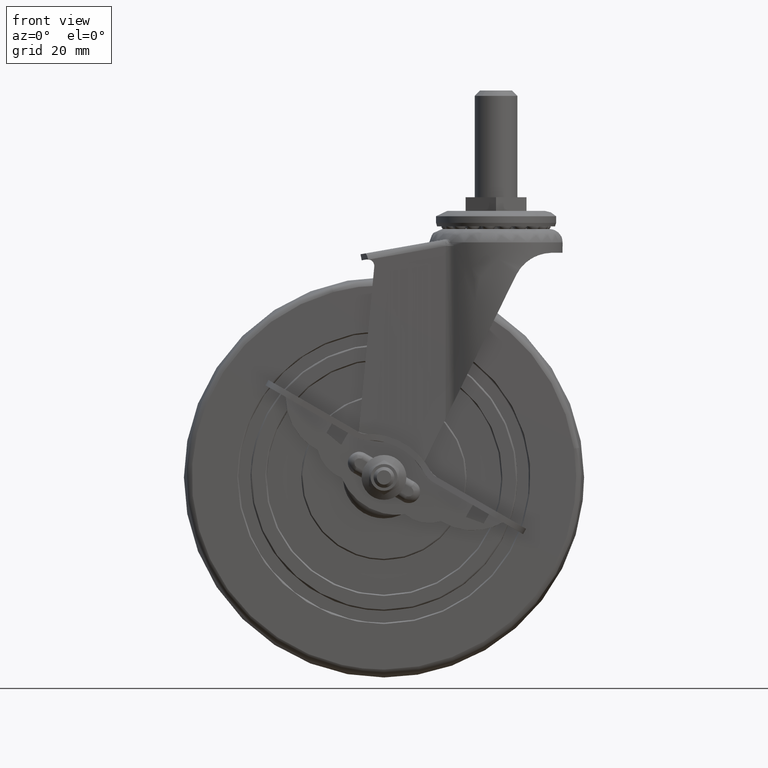
[diagram: clean part render]
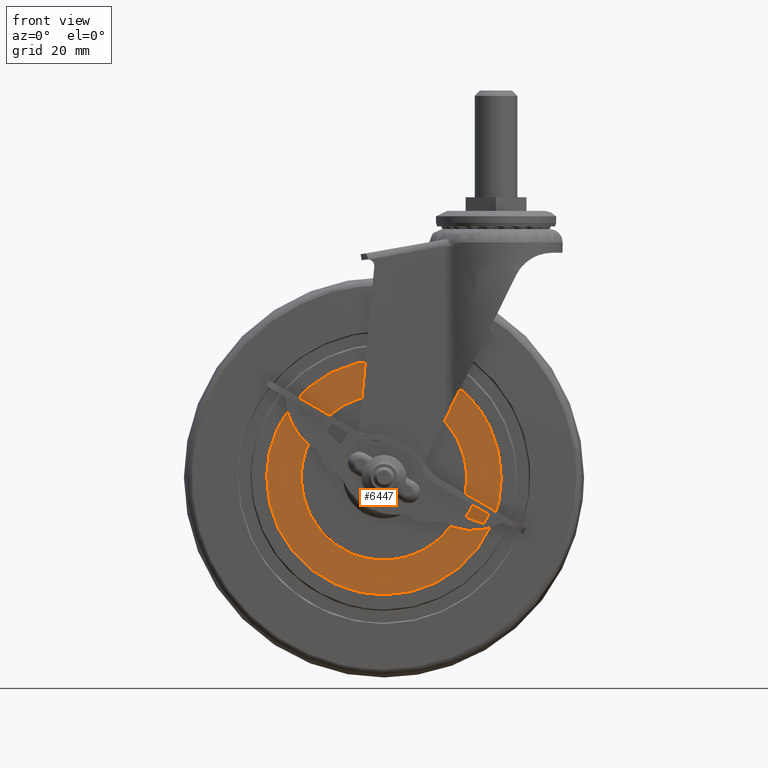
[diagram: same view with one face highlighted and labeled with its STEP entity id]
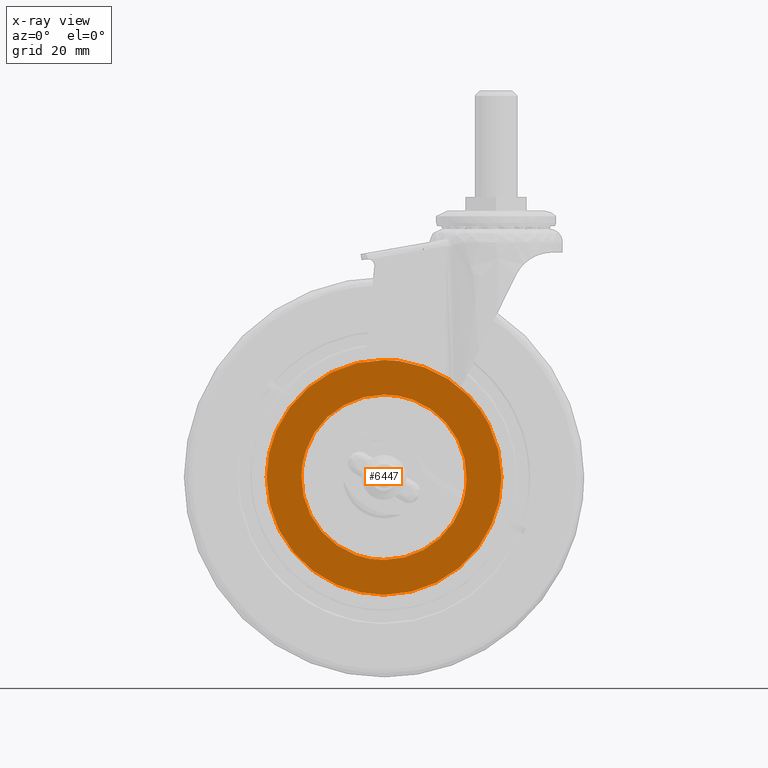
[diagram: x-ray of the same camera — body ghosted, the highlighted face saturated]
A machine part, front view. The second image highlights one B-rep face of the part: STEP entity #6447.
The next image is the same camera in x-ray: the body ghosted, the highlighted face saturated — about 0% of this face is hidden behind the body in this view.
In plain terms, the highlighted face is a freeform B-spline surface patch.
Its self-contained STEP definition (entity closure, byte-faithful):
#1001=CARTESIAN_POINT('',(5.507928156522100,-12.500000000000050,43.653897096731313));
#1002=VERTEX_POINT('',#1001);
#1003=CARTESIAN_POINT('',(0.0,-12.500000000000000,44.0));
#1004=VERTEX_POINT('',#1003);
#1005=CARTESIAN_POINT('',(5.507928156522100,-12.500000000000050,43.653897096731313));
#1006=CARTESIAN_POINT('',(3.681605493929291,-12.500000000000050,43.884373432649419));
#1007=CARTESIAN_POINT('',(1.840806214977043,-12.500000000000000,44.000031619623378));
#1008=CARTESIAN_POINT('',(0.0,-12.500000000000000,44.0));
#1009=B_SPLINE_CURVE_WITH_KNOTS('',3,(#1005,#1006,#1007,#1008),.UNSPECIFIED.,.F.,.U.,(4,4),(7.898118E-010,5.522429648992174),.UNSPECIFIED.);
#1010=EDGE_CURVE('',#1002,#1004,#1009,.T.);
#1098=CARTESIAN_POINT('',(31.916472717883430,-12.500000000000050,30.287601836070039));
#1099=VERTEX_POINT('',#1098);
#1105=CARTESIAN_POINT('',(43.999999999999922,-12.500000000000000,0.000002536736108));
#1106=VERTEX_POINT('',#1105);
#1107=CARTESIAN_POINT('',(43.999999999999922,-12.500000000000000,0.000002536736108));
#1108=CARTESIAN_POINT('',(44.000173685693163,-12.499999999999950,2.435834442095090));
#1109=CARTESIAN_POINT('',(43.594479688003823,-12.500000000000050,7.307451354724194));
#1110=CARTESIAN_POINT('',(41.980329791105710,-12.500000000000050,13.652380534259169));
#1111=CARTESIAN_POINT('',(39.504811051110948,-12.500000000000080,19.700297988192830));
#1112=CARTESIAN_POINT('',(36.338941588718200,-12.499999999999851,25.129852487764950));
#1113=CARTESIAN_POINT('',(33.413602350257086,-12.500000000000460,28.710091978004680));
#1114=CARTESIAN_POINT('',(31.916472717883430,-12.500000000000050,30.287601836070039));
#1115=B_SPLINE_CURVE_WITH_KNOTS('',3,(#1107,#1108,#1109,#1110,#1111,#1112,#1113,#1114),.UNSPECIFIED.,.F.,.U.,(4,1,1,1,1,4),(0.000000030561509,7.307484340641956,14.614987730618230,19.573614730043008,26.881108953884279,33.405648651164690),.UNSPECIFIED.);
#1116=EDGE_CURVE('',#1106,#1099,#1115,.T.);
#1118=CARTESIAN_POINT('',(0.0,-12.500000000000000,-44.0));
#1119=VERTEX_POINT('',#1118);
#1120=CARTESIAN_POINT('',(0.0,-12.500000000000000,-44.0));
#1121=CARTESIAN_POINT('',(3.149816687455145,-12.500000000000041,-44.000556580729352));
#1122=CARTESIAN_POINT('',(8.369204606220297,-12.499999999999879,-43.437011515448141));
#1123=CARTESIAN_POINT('',(14.775379059175769,-12.500000000000130,-41.557751543534323));
#1124=CARTESIAN_POINT('',(19.744244777730351,-12.499999999999879,-39.427780706784262));
#1125=CARTESIAN_POINT('',(24.052295983331650,-12.499999999999901,-36.969799818149021));
#1126=CARTESIAN_POINT('',(28.613135964990409,-12.500000000000210,-33.587313415377963));
#1127=CARTESIAN_POINT('',(32.706313467943268,-12.499999999999959,-29.642123848400221));
#1128=CARTESIAN_POINT('',(36.493900344153502,-12.500000000000069,-24.819373291929729));
#1129=CARTESIAN_POINT('',(39.096884972739609,-12.499999999999970,-20.384407546800620));
#1130=CARTESIAN_POINT('',(41.154906041577739,-12.500000000000011,-15.779719634873000));
#1131=CARTESIAN_POINT('',(42.540751059392399,-12.500000000000060,-11.584697558373099));
#1132=CARTESIAN_POINT('',(43.697752066040707,-12.499999999999750,-6.119488230498729));
#1133=CARTESIAN_POINT('',(44.000158097064769,-12.500000000000449,-2.339823289393731));
#1134=CARTESIAN_POINT('',(43.999999999999922,-12.500000000000000,0.000002536736108));
#1135=B_SPLINE_CURVE_WITH_KNOTS('',3,(#1120,#1121,#1122,#1123,#1124,#1125,#1126,#1127,#1128,#1129,#1130,#1131,#1132,#1133,#1134),.UNSPECIFIED.,.F.,.U.,(4,1,1,1,1,1,1,1,1,1,1,1,4),(0.000000124394205,9.449325278859796,15.658895257694899,19.978607046891788,25.648235195537559,30.507903626841468,36.987375284897318,42.656982673524382,48.866556400957251,52.376324872986707,57.775951514229767,62.095696382440643,69.115148230160642),.UNSPECIFIED.);
#1136=EDGE_CURVE('',#1119,#1106,#1135,.T.);
#1138=CARTESIAN_POINT('',(-43.999999999999929,-12.500000000000000,-0.000002536735341));
#1139=VERTEX_POINT('',#1138);
#1140=CARTESIAN_POINT('',(-43.999999999999929,-12.500000000000000,-0.000002536735341));
#1141=CARTESIAN_POINT('',(-44.000077886952511,-12.500000000000000,-1.979843347429738));
#1142=CARTESIAN_POINT('',(-43.738388225332521,-12.500000000000030,-5.849539779258989));
#1143=CARTESIAN_POINT('',(-42.684382072963643,-12.500000000000000,-11.064738453688120));
#1144=CARTESIAN_POINT('',(-41.020078964708922,-12.499999999999980,-16.208330109738291));
#1145=CARTESIAN_POINT('',(-38.372903292954462,-12.500000000000060,-21.942048390581100));
#1146=CARTESIAN_POINT('',(-34.401584233655242,-12.499999999999931,-27.768610776132370));
#1147=CARTESIAN_POINT('',(-29.329047756944469,-12.499999999999959,-33.031205413666747));
#1148=CARTESIAN_POINT('',(-23.509443706493691,-12.500000000000110,-37.459319402143848));
#1149=CARTESIAN_POINT('',(-17.722735596246959,-12.499999999999970,-40.439137799833190));
#1150=CARTESIAN_POINT('',(-12.020987813814299,-12.500000000000110,-42.419970639323211));
#1151=CARTESIAN_POINT('',(-6.569469428249429,-12.499999999999790,-43.661812468035158));
#1152=CARTESIAN_POINT('',(-2.339819189141733,-12.500000000000419,-44.000155825818133));
#1153=CARTESIAN_POINT('',(0.0,-12.500000000000000,-44.0));
#1154=B_SPLINE_CURVE_WITH_KNOTS('',3,(#1140,#1141,#1142,#1143,#1144,#1145,#1146,#1147,#1148,#1149,#1150,#1151,#1152,#1153),.UNSPECIFIED.,.F.,.U.,(4,1,1,1,1,1,1,1,1,1,1,4),(0.000000124608107,5.939521795007806,11.609158345547399,15.928879533867240,22.138456083013811,30.507902364040451,36.987373752991552,44.006866822950272,52.376322705906723,56.426059511879537,62.095693813225431,69.115145370663740),.UNSPECIFIED.);
#1155=EDGE_CURVE('',#1139,#1119,#1154,.T.);
#1157=CARTESIAN_POINT('',(0.0,-12.500000000000000,44.0));
#1158=CARTESIAN_POINT('',(-3.329826366400188,-12.499999999999989,44.000723509312103));
#1159=CARTESIAN_POINT('',(-8.099161931539387,-12.500000000000060,43.455909123552239));
#1160=CARTESIAN_POINT('',(-13.993973408019530,-12.499999999999950,41.785307838454763));
#1161=CARTESIAN_POINT('',(-18.863330930031520,-12.500000000000060,39.890037992338719));
#1162=CARTESIAN_POINT('',(-23.459497076358819,-12.499999999999959,37.378644536272517));
#1163=CARTESIAN_POINT('',(-28.184848062521059,-12.500000000000041,33.918688955950948));
#1164=CARTESIAN_POINT('',(-31.555130366048889,-12.499999999999901,30.787868921473638));
#1165=CARTESIAN_POINT('',(-34.861194169729544,-12.500000000000030,26.978906176345362));
#1166=CARTESIAN_POINT('',(-37.549643988440472,-12.499999999999989,23.136671861655739));
#1167=CARTESIAN_POINT('',(-39.843915081352847,-12.500000000000011,18.844258634462928));
#1168=CARTESIAN_POINT('',(-41.589110784809861,-12.500000000000060,14.594071092770660));
#1169=CARTESIAN_POINT('',(-43.409406684455227,-12.499999999999790,8.459088147694139));
#1170=CARTESIAN_POINT('',(-44.000781802305248,-12.500000000000220,3.419824860943434));
#1171=CARTESIAN_POINT('',(-43.999999999999929,-12.500000000000000,-0.000002536735341));
#1172=B_SPLINE_CURVE_WITH_KNOTS('',3,(#1157,#1158,#1159,#1160,#1161,#1162,#1163,#1164,#1165,#1166,#1167,#1168,#1169,#1170,#1171),.UNSPECIFIED.,.F.,.U.,(4,1,1,1,1,1,1,1,1,1,1,1,4),(0.000000124393239,9.989261482856868,14.308993286259390,18.358714855197402,25.648235195540838,29.967962659630778,35.907400254783447,39.417200126009703,45.086823888082932,49.946490136680332,53.996218473874201,58.855905931271757,69.115148230160202),.UNSPECIFIED.);
#1173=EDGE_CURVE('',#1004,#1139,#1172,.T.);
#1192=CARTESIAN_POINT('',(31.916472717883430,-12.500000000000050,30.287601836070039));
#1193=CARTESIAN_POINT('',(30.780107452350329,-12.500000000000041,31.485085034746412));
#1194=CARTESIAN_POINT('',(27.741920171821761,-12.500000000000099,34.345831419710578));
#1195=CARTESIAN_POINT('',(21.934968272106140,-12.500000000000069,38.433102141531940));
#1196=CARTESIAN_POINT('',(14.245632212220730,-12.499999999999920,41.943962344575759));
#1197=CARTESIAN_POINT('',(8.471772541711072,-12.500000000000190,43.280368939406110));
#1198=CARTESIAN_POINT('',(5.507928156522100,-12.500000000000050,43.653897096731313));
#1199=B_SPLINE_CURVE_WITH_KNOTS('',3,(#1192,#1193,#1194,#1195,#1196,#1197,#1198),.UNSPECIFIED.,.F.,.U.,(4,1,1,1,4),(0.000000023869106,4.952557027038804,12.499353269002221,21.225273578709999,30.187057280847750),.UNSPECIFIED.);
#1200=EDGE_CURVE('',#1099,#1002,#1199,.T.);
#3191=CARTESIAN_POINT('',(-30.990209867778141,-12.500000004076250,0.779032958908664));
#3192=VERTEX_POINT('',#3191);
#3193=CARTESIAN_POINT('',(0.0,-12.500000000000000,-31.0));
#3194=VERTEX_POINT('',#3193);
#3195=CARTESIAN_POINT('',(-30.990209867778141,-12.500000004076250,0.779032958908664));
#3196=CARTESIAN_POINT('',(-31.040648445308829,-12.500000003646999,-1.217320918594933));
#3197=CARTESIAN_POINT('',(-30.767462899137200,-12.500000002860080,-5.026020605245900));
#3198=CARTESIAN_POINT('',(-29.525933151761610,-12.500000001955749,-9.781115422736075));
#3199=CARTESIAN_POINT('',(-27.785398268608532,-12.500000001219769,-13.947940447207859));
#3200=CARTESIAN_POINT('',(-25.836918581412750,-12.500000000675550,-17.299606434831521));
#3201=CARTESIAN_POINT('',(-23.263538536910339,-12.500000000193770,-20.611060178181329));
#3202=CARTESIAN_POINT('',(-20.067916533217169,-12.499999999790621,-23.807611028352181));
#3203=CARTESIAN_POINT('',(-16.338276597090900,-12.499999999543340,-26.489422589133660));
#3204=CARTESIAN_POINT('',(-12.139562006821629,-12.499999999452511,-28.625608971942910));
#3205=CARTESIAN_POINT('',(-6.956881841531130,-12.499999999516190,-30.439763949033999));
#3206=CARTESIAN_POINT('',(-2.705680894311840,-12.499999999765130,-31.000797249464881));
#3207=CARTESIAN_POINT('',(0.0,-12.500000000000000,-31.0));
#3208=B_SPLINE_CURVE_WITH_KNOTS('',3,(#3195,#3196,#3197,#3198,#3199,#3200,#3201,#3202,#3203,#3204,#3205,#3206,#3207),.UNSPECIFIED.,.F.,.U.,(4,1,1,1,1,1,1,1,1,1,4),(0.000000139697896,5.990928957480591,11.402181364243839,14.687577443431920,19.519047260606271,22.997673756959720,27.249213828711390,33.046980692905343,36.718898033478347,41.357101935401467,49.473881222290267),.UNSPECIFIED.);
#3209=EDGE_CURVE('',#3192,#3194,#3208,.T.);
#3211=CARTESIAN_POINT('',(30.990209867778141,-12.500000004076250,-0.779032958908662));
#3212=VERTEX_POINT('',#3211);
#3213=CARTESIAN_POINT('',(0.0,-12.500000000000000,-31.0));
#3214=CARTESIAN_POINT('',(2.183694592083370,-12.499999999999950,-31.000422855941419));
#3215=CARTESIAN_POINT('',(5.427774536264012,-12.500000000046439,-30.655639916261681));
#3216=CARTESIAN_POINT('',(10.254231974103639,-12.500000000221450,-29.358135041306308));
#3217=CARTESIAN_POINT('',(14.755483200839210,-12.500000000477110,-27.463170374922260));
#3218=CARTESIAN_POINT('',(19.153361591336989,-12.500000000867670,-24.565291682872520));
#3219=CARTESIAN_POINT('',(22.442653549580651,-12.500000001282951,-21.490064077556170));
#3220=CARTESIAN_POINT('',(24.981866530782501,-12.500000001688081,-18.483793789631381));
#3221=CARTESIAN_POINT('',(27.075000930898401,-12.500000002118661,-15.293305981166959));
#3222=CARTESIAN_POINT('',(28.796305297055969,-12.500000002605780,-11.681490961186020));
#3223=CARTESIAN_POINT('',(30.388121289694411,-12.500000003244830,-6.942216437748365));
#3224=CARTESIAN_POINT('',(30.928148507159399,-12.500000003739840,-3.273937529586371));
#3225=CARTESIAN_POINT('',(30.990209867778141,-12.500000004076250,-0.779032958908662));
#3226=B_SPLINE_CURVE_WITH_KNOTS('',3,(#3213,#3214,#3215,#3216,#3217,#3218,#3219,#3220,#3221,#3222,#3223,#3224,#3225),.UNSPECIFIED.,.F.,.U.,(4,1,1,1,1,1,1,1,1,1,4),(0.000000134359560,6.550953638772285,9.732850081004052,14.973662430838790,21.150329511283669,25.455107960321310,28.449866130172921,32.941983852711260,36.872591345435168,40.428827212135950,47.915643931953838),.UNSPECIFIED.);
#3227=EDGE_CURVE('',#3194,#3212,#3226,.T.);
#3311=CARTESIAN_POINT('',(0.0,-12.500000000000000,31.0));
#3312=VERTEX_POINT('',#3311);
#3313=CARTESIAN_POINT('',(0.0,-12.500000000000000,31.0));
#3314=CARTESIAN_POINT('',(-1.310170756451447,-12.500000000000011,31.000032206317680));
#3315=CARTESIAN_POINT('',(-4.180111486969668,-12.500000000024549,30.817844340555880));
#3316=CARTESIAN_POINT('',(-8.409297115923408,-12.500000000141579,29.950608503270029));
#3317=CARTESIAN_POINT('',(-12.643591651758801,-12.500000000348130,28.418495149807580));
#3318=CARTESIAN_POINT('',(-17.116665566821140,-12.500000000669271,26.038244135108311));
#3319=CARTESIAN_POINT('',(-21.018312561035948,-12.500000001081300,22.984252307925260));
#3320=CARTESIAN_POINT('',(-23.970736406641130,-12.500000001516881,19.754141027170071));
#3321=CARTESIAN_POINT('',(-26.110481962496880,-12.500000001911131,16.831381780491629));
#3322=CARTESIAN_POINT('',(-27.882127441222138,-12.500000002327919,13.738814893288980));
#3323=CARTESIAN_POINT('',(-29.535553607025260,-12.500000002866170,9.755533451194081));
#3324=CARTESIAN_POINT('',(-30.641801588559069,-12.500000003444731,5.450995033429295));
#3325=CARTESIAN_POINT('',(-30.952629362499788,-12.500000003875520,2.275905851113367));
#3326=CARTESIAN_POINT('',(-30.990209867778141,-12.500000004076250,0.779032958908664));
#3327=B_SPLINE_CURVE_WITH_KNOTS('',3,(#3313,#3314,#3315,#3316,#3317,#3318,#3319,#3320,#3321,#3322,#3323,#3324,#3325,#3326),.UNSPECIFIED.,.F.,.U.,(4,1,1,1,1,1,1,1,1,1,1,4),(0.000000134408950,3.930518127671078,8.609834580466142,12.914771055548510,17.406894720962558,23.770736336501020,27.701209525930601,30.508753653245549,34.626532777210713,38.369951442110747,43.423599828447372,47.915643931953632),.UNSPECIFIED.);
#3328=EDGE_CURVE('',#3312,#3192,#3327,.T.);
#3367=CARTESIAN_POINT('',(30.990209867778141,-12.500000004076250,-0.779032958908662));
#3368=CARTESIAN_POINT('',(31.037313275793771,-12.500000003674710,1.088509150260408));
#3369=CARTESIAN_POINT('',(30.771429920552791,-12.500000002832319,5.154871997175611));
#3370=CARTESIAN_POINT('',(29.364116275505118,-12.500000001835620,10.411316605214020));
#3371=CARTESIAN_POINT('',(27.223408787626209,-12.500000001036090,15.040427955867230));
#3372=CARTESIAN_POINT('',(24.560479847617191,-12.500000000389230,19.165046131159880));
#3373=CARTESIAN_POINT('',(21.051060588260739,-12.499999999883009,22.971807664438941));
#3374=CARTESIAN_POINT('',(17.197330839382921,-12.499999999592459,25.910095280260769));
#3375=CARTESIAN_POINT('',(13.489176399003050,-12.499999999467031,28.005318860236699));
#3376=CARTESIAN_POINT('',(9.541903519403030,-12.499999999468320,29.611880885056589));
#3377=CARTESIAN_POINT('',(4.960219615549458,-12.499999999626549,30.733103216585011));
#3378=CARTESIAN_POINT('',(1.674891672909003,-12.499999999854790,31.000122637932691));
#3379=CARTESIAN_POINT('',(0.0,-12.500000000000000,31.0));
#3380=B_SPLINE_CURVE_WITH_KNOTS('',3,(#3367,#3368,#3369,#3370,#3371,#3372,#3373,#3374,#3375,#3376,#3377,#3378,#3379),.UNSPECIFIED.,.F.,.U.,(4,1,1,1,1,1,1,1,1,1,4),(0.000000139689746,5.604415059782518,12.175212988539201,16.233625925907159,20.871859821811888,26.862706775532988,31.694165889417061,35.366094517909083,39.617776969047199,44.449219535746977,49.473881222290323),.UNSPECIFIED.);
#3381=EDGE_CURVE('',#3212,#3312,#3380,.T.);
#6428=CARTESIAN_POINT('',(-48.395599829438851,-12.500000000000000,48.395599829438922));
#6429=CARTESIAN_POINT('',(-48.395599829438851,-12.500000000000000,-48.395602189782863));
#6430=CARTESIAN_POINT('',(48.395602189782778,-12.500000000000000,48.395599829438922));
#6431=CARTESIAN_POINT('',(48.395602189782778,-12.500000000000000,-48.395602189782863));
#6432=B_SPLINE_SURFACE_WITH_KNOTS('',1,1,((#6428,#6430),(#6429,#6431)),.UNSPECIFIED.,.F.,.F.,.U.,(2,2),(2,2),(0.0,96.791202019221771),(0.0,96.791202019221629),.UNSPECIFIED.);
#6433=ORIENTED_EDGE('',*,*,#1136,.T.);
#6434=ORIENTED_EDGE('',*,*,#1116,.T.);
#6435=ORIENTED_EDGE('',*,*,#1200,.T.);
#6436=ORIENTED_EDGE('',*,*,#1010,.T.);
#6437=ORIENTED_EDGE('',*,*,#1173,.T.);
#6438=ORIENTED_EDGE('',*,*,#1155,.T.);
#6439=EDGE_LOOP('',(#6433,#6434,#6435,#6436,#6437,#6438));
#6440=FACE_OUTER_BOUND('',#6439,.T.);
#6441=ORIENTED_EDGE('',*,*,#3227,.F.);
#6442=ORIENTED_EDGE('',*,*,#3209,.F.);
#6443=ORIENTED_EDGE('',*,*,#3328,.F.);
#6444=ORIENTED_EDGE('',*,*,#3381,.F.);
#6445=EDGE_LOOP('',(#6441,#6442,#6443,#6444));
#6446=FACE_BOUND('',#6445,.T.);
#6447=ADVANCED_FACE('',(#6440,#6446),#6432,.T.);